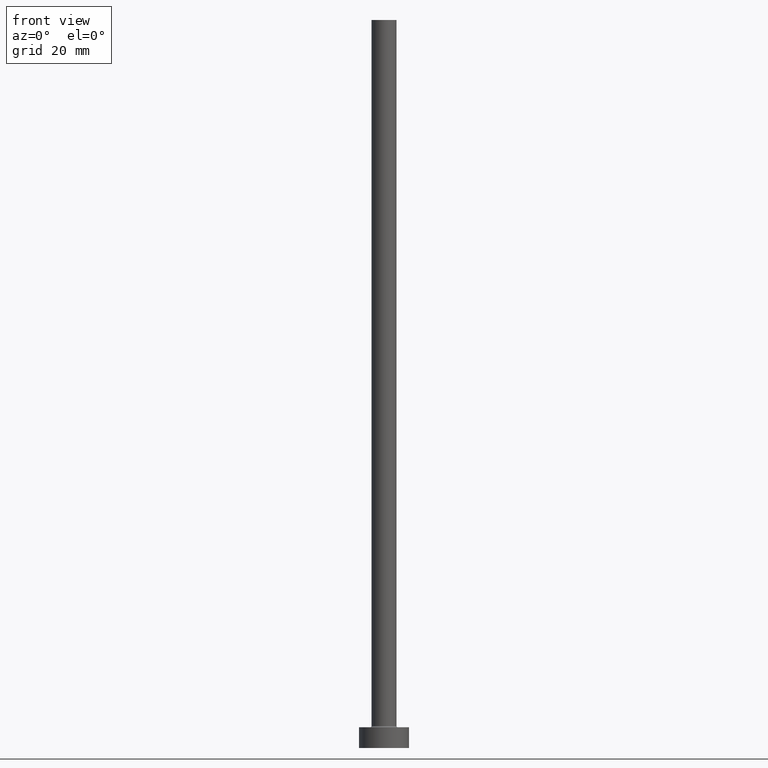
[diagram: clean part render]
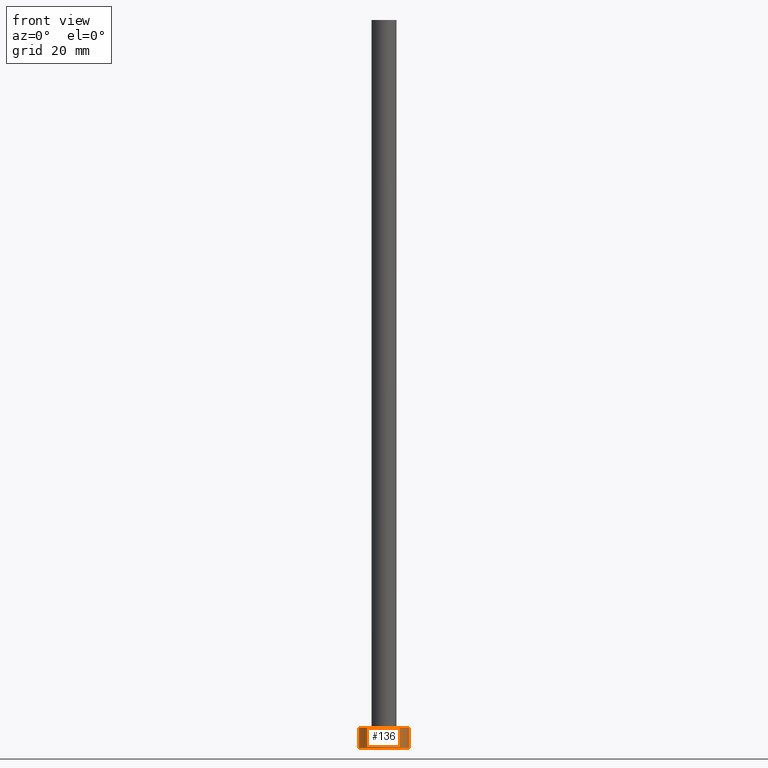
[diagram: same view with one face highlighted and labeled with its STEP entity id]
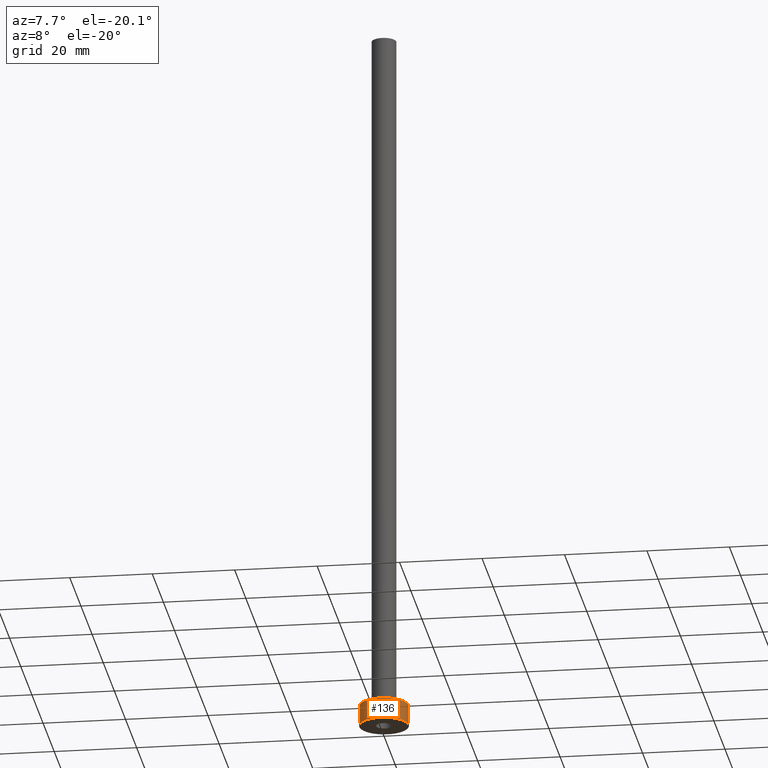
[diagram: same view with one face highlighted and labeled with its STEP entity id]
A machine part, front view. The second image highlights one B-rep face of the part: STEP entity #136.
A second angle (auxiliary view) of the same face is appended — the face is thin or edge-on in the first view.
In plain terms, the highlighted cylindrical surface (edge-blend (fillet) strip) has radius 6 mm, axis along (-0, -0, -1).
Its self-contained STEP definition (entity closure, byte-faithful):
#25 = CARTESIAN_POINT ( 'NONE',  ( 6.000000000000000888, 7.347880794884120722E-16, 5.000000000000000000 ) ) ;
#26 = CYLINDRICAL_SURFACE ( 'NONE', #321, 6.000000000000000888 ) ;
#39 = CIRCLE ( 'NONE', #249, 6.000000000000000888 ) ;
#41 = CIRCLE ( 'NONE', #199, 6.000000000000000888 ) ;
#52 = EDGE_CURVE ( 'NONE', #369, #232, #134, .T. ) ;
#67 = VERTEX_POINT ( 'NONE', #344 ) ;
#74 = EDGE_LOOP ( 'NONE', ( #424, #297, #434, #447 ) ) ;
#109 = DIRECTION ( 'NONE',  ( 0.000000000000000000, 0.000000000000000000, 1.000000000000000000 ) ) ;
#117 = CARTESIAN_POINT ( 'NONE',  ( -6.000000000000000888, 0.000000000000000000, 5.000000000000000000 ) ) ;
#127 = CARTESIAN_POINT ( 'NONE',  ( -6.000000000000000888, 0.000000000000000000, 5.000000000000000000 ) ) ;
#134 = LINE ( 'NONE', #25, #162 ) ;
#136 = ADVANCED_FACE ( 'NONE', ( #341 ), #26, .T. ) ;
#144 = DIRECTION ( 'NONE',  ( 0.000000000000000000, 0.000000000000000000, 1.000000000000000000 ) ) ;
#157 = CARTESIAN_POINT ( 'NONE',  ( 6.000000000000000888, 7.347880794884120722E-16, 5.000000000000000000 ) ) ;
#160 = VERTEX_POINT ( 'NONE', #117 ) ;
#162 = VECTOR ( 'NONE', #265, 1000.000000000000000 ) ;
#172 = CARTESIAN_POINT ( 'NONE',  ( 0.000000000000000000, 0.000000000000000000, 5.000000000000000000 ) ) ;
#199 = AXIS2_PLACEMENT_3D ( 'NONE', #172, #144, #274 ) ;
#207 = DIRECTION ( 'NONE',  ( -1.000000000000000000, 0.000000000000000000, 0.000000000000000000 ) ) ;
#216 = EDGE_CURVE ( 'NONE', #160, #67, #296, .T. ) ;
#232 = VERTEX_POINT ( 'NONE', #328 ) ;
#249 = AXIS2_PLACEMENT_3D ( 'NONE', #391, #109, #279 ) ;
#265 = DIRECTION ( 'NONE',  ( -0.000000000000000000, -0.000000000000000000, -1.000000000000000000 ) ) ;
#274 = DIRECTION ( 'NONE',  ( 1.000000000000000000, 0.000000000000000000, 0.000000000000000000 ) ) ;
#279 = DIRECTION ( 'NONE',  ( 1.000000000000000000, 0.000000000000000000, 0.000000000000000000 ) ) ;
#296 = LINE ( 'NONE', #127, #440 ) ;
#297 = ORIENTED_EDGE ( 'NONE', *, *, #406, .F. ) ;
#303 = CARTESIAN_POINT ( 'NONE',  ( 0.000000000000000000, 0.000000000000000000, 5.000000000000000000 ) ) ;
#321 = AXIS2_PLACEMENT_3D ( 'NONE', #303, #452, #207 ) ;
#328 = CARTESIAN_POINT ( 'NONE',  ( 6.000000000000000888, 7.347880794884120722E-16, 0.000000000000000000 ) ) ;
#341 = FACE_OUTER_BOUND ( 'NONE', #74, .T. ) ;
#344 = CARTESIAN_POINT ( 'NONE',  ( -6.000000000000000888, 0.000000000000000000, 0.000000000000000000 ) ) ;
#369 = VERTEX_POINT ( 'NONE', #157 ) ;
#391 = CARTESIAN_POINT ( 'NONE',  ( 0.000000000000000000, 0.000000000000000000, 0.000000000000000000 ) ) ;
#406 = EDGE_CURVE ( 'NONE', #160, #369, #41, .T. ) ;
#424 = ORIENTED_EDGE ( 'NONE', *, *, #52, .F. ) ;
#429 = EDGE_CURVE ( 'NONE', #67, #232, #39, .T. ) ;
#434 = ORIENTED_EDGE ( 'NONE', *, *, #216, .T. ) ;
#440 = VECTOR ( 'NONE', #445, 1000.000000000000000 ) ;
#445 = DIRECTION ( 'NONE',  ( -0.000000000000000000, -0.000000000000000000, -1.000000000000000000 ) ) ;
#447 = ORIENTED_EDGE ( 'NONE', *, *, #429, .T. ) ;
#452 = DIRECTION ( 'NONE',  ( -0.000000000000000000, -0.000000000000000000, -1.000000000000000000 ) ) ;